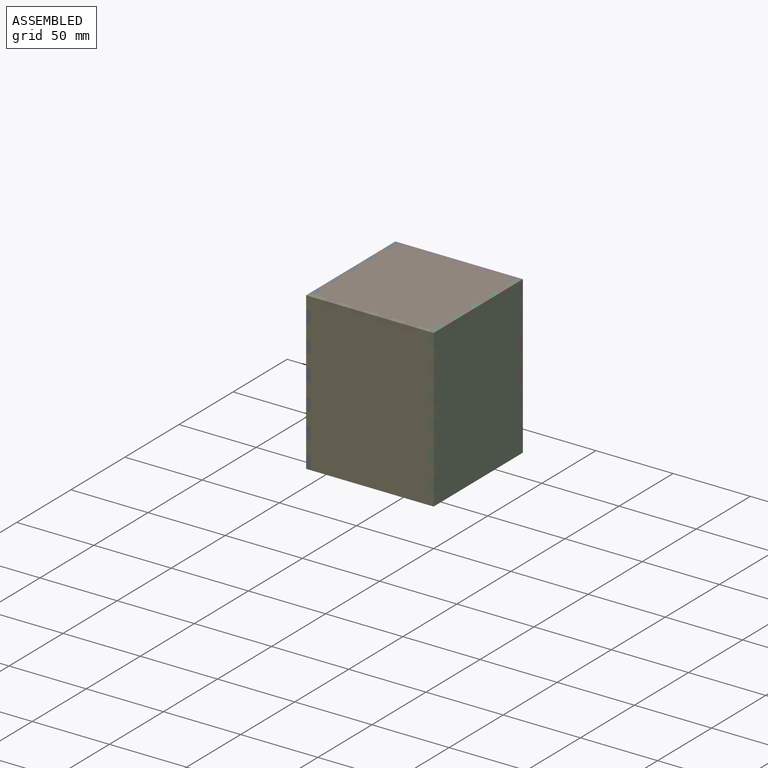
[diagram: assembled view]
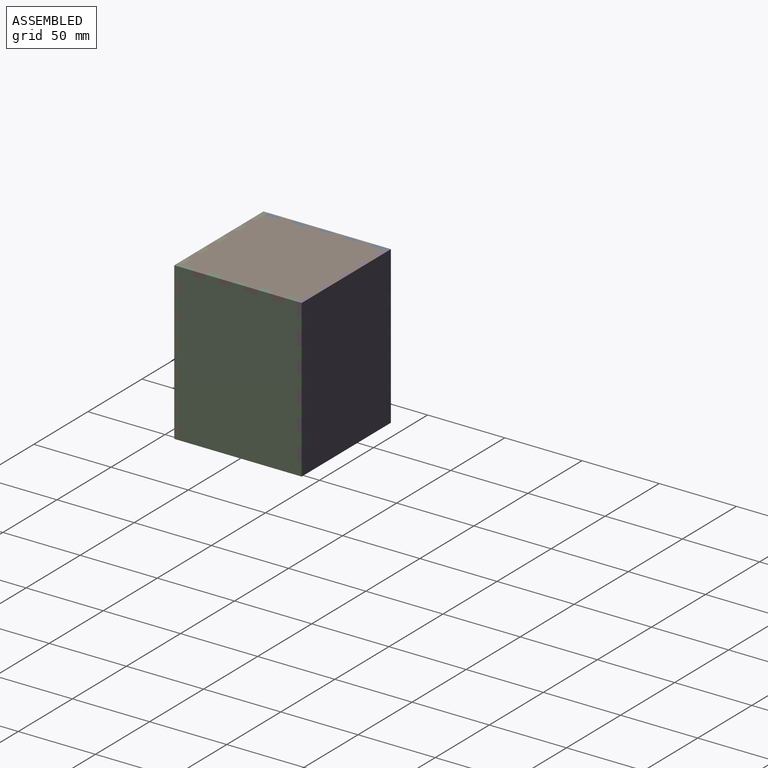
[diagram: assembled view, second angle]
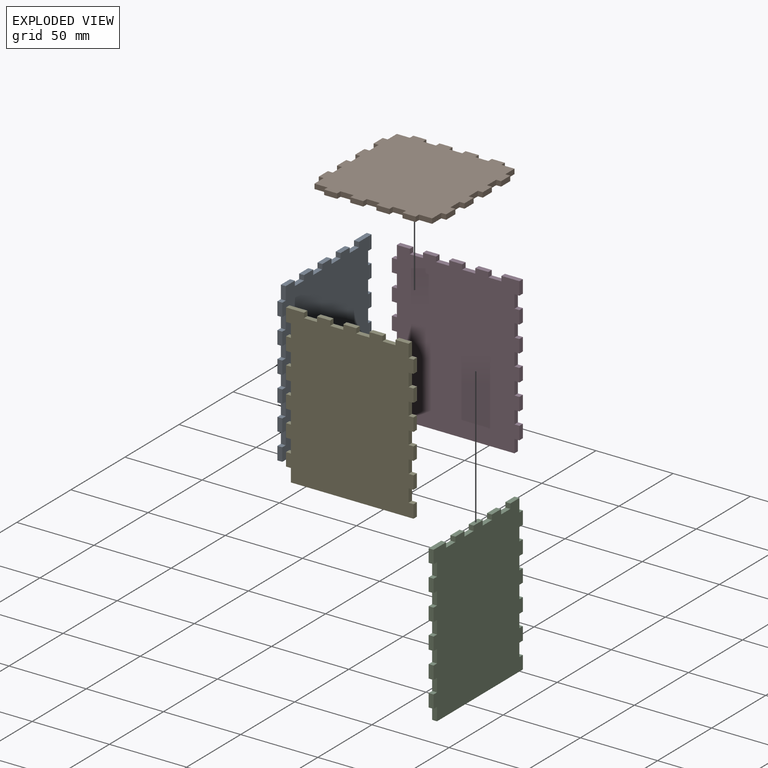
[diagram: exploded view]
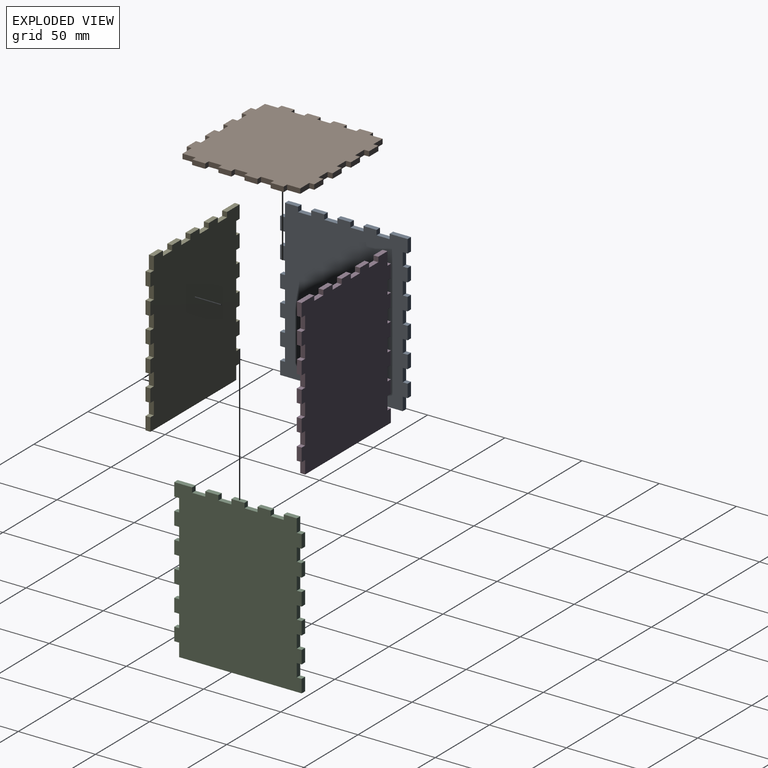
[diagram: exploded view, second angle]
ASSEMBLY  parts=5 mates=12
PART A: 66 faces, bbox 82.6x3.2x101.6 mm
  f0: plane 8.47x3.18mm, normal (0,0,-1), area 26.9mm2, adj f4,f5,f62,f63
  f1: plane 8.47x3.18mm, normal (0,0,-1), area 26.9mm2, adj f4,f5,f59,f60
  f2: plane 8.47x3.18mm, normal (0,0,-1), area 26.9mm2, adj f4,f5,f56,f57
  f3: plane 11.64x3.18mm, normal (0,0,-1), area 37mm2, adj f4,f5,f38,f54
  f4: plane 101.6x82.55mm, normal (0,-1,0), area 7957mm2, adj f0,f1,f2,f3,f6,f7,f8,f9
  f5: plane 101.6x82.55mm, normal (0,1,0), area 7957mm2, adj f0,f1,f2,f3,f6,f7,f8,f9
  f6: plane 8.47x3.18mm, normal (1,0,0), area 26.9mm2, adj f4,f5,f17,f51
  f7: plane 8.47x3.18mm, normal (1,0,0), area 26.9mm2, adj f4,f5,f48,f52
  f8: plane 8.47x3.18mm, normal (1,0,0), area 26.9mm2, adj f4,f5,f45,f49
  f9: plane 8.47x3.18mm, normal (1,0,0), area 26.9mm2, adj f4,f5,f42,f46
  f10: plane 8.47x3.18mm, normal (1,0,0), area 26.9mm2, adj f4,f5,f39,f43
  f11: plane 8.47x3.18mm, normal (1,0,0), area 26.9mm2, adj f4,f5,f37,f40
  f12: plane 8.47x3.18mm, normal (-1,0,0), area 26.9mm2, adj f4,f5,f32,f36
  f13: plane 8.47x3.18mm, normal (-1,0,0), area 26.9mm2, adj f4,f5,f29,f33
  f14: plane 8.47x3.18mm, normal (-1,0,0), area 26.9mm2, adj f4,f5,f26,f30
  f15: plane 8.47x3.18mm, normal (-1,0,0), area 26.9mm2, adj f4,f5,f23,f27
  f16: plane 8.47x3.18mm, normal (-1,0,0), area 26.9mm2, adj f4,f5,f21,f24
  f17: plane 79.38x3.18mm, normal (0,0,1), area 252mm2, adj f4,f5,f6,f20
  f18: plane 8.47x3.18mm, normal (-1,0,0), area 26.9mm2, adj f4,f5,f19,f35
  f19: plane 8.47x3.18mm, normal (0,0,-1), area 26.9mm2, adj f4,f5,f18,f65
  f20: plane 8.47x3.18mm, normal (-1,0,0), area 26.9mm2, adj f4,f5,f17,f21
  f21: plane 3.18x3.18mm, normal (0,0,-1), area 10.1mm2, adj f4,f5,f16,f20
  f22: plane 8.47x3.18mm, normal (-1,0,0), area 26.9mm2, adj f4,f5,f23,f24
  f23: plane 3.18x3.18mm, normal (0,0,-1), area 10.1mm2, adj f4,f5,f15,f22
  f24: plane 3.18x3.18mm, normal (0,0,1), area 10.1mm2, adj f4,f5,f16,f22
  f25: plane 8.47x3.18mm, normal (-1,0,0), area 26.9mm2, adj f4,f5,f26,f27
  f26: plane 3.18x3.18mm, normal (0,0,-1), area 10.1mm2, adj f4,f5,f14,f25
  f27: plane 3.18x3.18mm, normal (0,0,1), area 10.1mm2, adj f4,f5,f15,f25
  f28: plane 8.47x3.18mm, normal (-1,0,0), area 26.9mm2, adj f4,f5,f29,f30
  f29: plane 3.18x3.18mm, normal (0,0,-1), area 10.1mm2, adj f4,f5,f13,f28
  f30: plane 3.18x3.18mm, normal (0,0,1), area 10.1mm2, adj f4,f5,f14,f28
  f31: plane 8.47x3.18mm, normal (-1,0,0), area 26.9mm2, adj f4,f5,f32,f33
  f32: plane 3.18x3.18mm, normal (0,0,-1), area 10.1mm2, adj f4,f5,f12,f31
  f33: plane 3.18x3.18mm, normal (0,0,1), area 10.1mm2, adj f4,f5,f13,f31
  f34: plane 8.47x3.18mm, normal (-1,0,0), area 26.9mm2, adj f4,f5,f35,f36
  f35: plane 3.18x3.18mm, normal (0,0,-1), area 10.1mm2, adj f4,f5,f18,f34
  f36: plane 3.18x3.18mm, normal (0,0,1), area 10.1mm2, adj f4,f5,f12,f34
  f37: plane 3.18x3.18mm, normal (0,0,1), area 10.1mm2, adj f4,f5,f11,f38
  f38: plane 8.47x3.18mm, normal (1,0,0), area 26.9mm2, adj f3,f4,f5,f37
  f39: plane 3.18x3.18mm, normal (0,0,1), area 10.1mm2, adj f4,f5,f10,f41
  f40: plane 3.18x3.18mm, normal (0,0,-1), area 10.1mm2, adj f4,f5,f11,f41
  f41: plane 8.47x3.18mm, normal (1,0,0), area 26.9mm2, adj f4,f5,f39,f40
  f42: plane 3.18x3.18mm, normal (0,0,1), area 10.1mm2, adj f4,f5,f9,f44
  f43: plane 3.18x3.18mm, normal (0,0,-1), area 10.1mm2, adj f4,f5,f10,f44
  f44: plane 8.47x3.18mm, normal (1,0,0), area 26.9mm2, adj f4,f5,f42,f43
  f45: plane 3.18x3.18mm, normal (0,0,1), area 10.1mm2, adj f4,f5,f8,f47
  f46: plane 3.18x3.18mm, normal (0,0,-1), area 10.1mm2, adj f4,f5,f9,f47
  f47: plane 8.47x3.18mm, normal (1,0,0), area 26.9mm2, adj f4,f5,f45,f46
  f48: plane 3.18x3.18mm, normal (0,0,1), area 10.1mm2, adj f4,f5,f7,f50
  f49: plane 3.18x3.18mm, normal (0,0,-1), area 10.1mm2, adj f4,f5,f8,f50
  f50: plane 8.47x3.18mm, normal (1,0,0), area 26.9mm2, adj f4,f5,f48,f49
  f51: plane 3.18x3.18mm, normal (0,0,1), area 10.1mm2, adj f4,f5,f6,f53
  f52: plane 3.18x3.18mm, normal (0,0,-1), area 10.1mm2, adj f4,f5,f7,f53
  f53: plane 8.47x3.18mm, normal (1,0,0), area 26.9mm2, adj f4,f5,f51,f52
  f54: plane 3.18x3.18mm, normal (-1,0,0), area 10.1mm2, adj f3,f4,f5,f55
  f55: plane 8.47x3.18mm, normal (0,0,-1), area 26.9mm2, adj f4,f5,f54,f56
  f56: plane 3.18x3.18mm, normal (1,0,0), area 10.1mm2, adj f2,f4,f5,f55
  f57: plane 3.18x3.18mm, normal (-1,0,0), area 10.1mm2, adj f2,f4,f5,f58
  f58: plane 8.47x3.18mm, normal (0,0,-1), area 26.9mm2, adj f4,f5,f57,f59
  f59: plane 3.18x3.18mm, normal (1,0,0), area 10.1mm2, adj f1,f4,f5,f58
  f60: plane 3.18x3.18mm, normal (-1,0,0), area 10.1mm2, adj f1,f4,f5,f61
  f61: plane 8.47x3.18mm, normal (0,0,-1), area 26.9mm2, adj f4,f5,f60,f62
  f62: plane 3.18x3.18mm, normal (1,0,0), area 10.1mm2, adj f0,f4,f5,f61
  f63: plane 3.18x3.18mm, normal (-1,0,0), area 10.1mm2, adj f0,f4,f5,f64
  f64: plane 8.47x3.18mm, normal (0,0,-1), area 26.9mm2, adj f4,f5,f63,f65
  f65: plane 3.18x3.18mm, normal (1,0,0), area 10.1mm2, adj f4,f5,f19,f64
PART B: 70 faces, bbox 82.6x82.6x3.2 mm
  f0: plane 8.47x3.18mm, normal (-1,0,0), area 26.9mm2, adj f20,f21,f63,f67
  f1: plane 8.47x3.18mm, normal (1,0,0), area 26.9mm2, adj f20,f21,f60,f64
  f2: plane 8.47x3.18mm, normal (-1,0,0), area 26.9mm2, adj f20,f21,f57,f61
  f3: plane 8.47x3.18mm, normal (1,0,0), area 26.9mm2, adj f20,f21,f54,f58
  f4: plane 8.47x3.18mm, normal (-1,0,0), area 26.9mm2, adj f20,f21,f51,f55
  f5: plane 8.47x3.18mm, normal (1,0,0), area 26.9mm2, adj f20,f21,f48,f52
  f6: plane 8.47x3.18mm, normal (-1,0,0), area 26.9mm2, adj f15,f20,f21,f49
  f7: plane 8.47x3.18mm, normal (1,0,0), area 26.9mm2, adj f19,f20,f21,f46
  f8: plane 8.47x3.18mm, normal (0,1,0), area 26.9mm2, adj f20,f21,f39,f43
  f9: plane 8.47x3.18mm, normal (0,-1,0), area 26.9mm2, adj f20,f21,f36,f40
  f10: plane 8.47x3.18mm, normal (0,1,0), area 26.9mm2, adj f20,f21,f33,f37
  f11: plane 8.47x3.18mm, normal (0,-1,0), area 26.9mm2, adj f20,f21,f30,f34
  f12: plane 8.47x3.18mm, normal (0,1,0), area 26.9mm2, adj f20,f21,f27,f31
  f13: plane 8.47x3.18mm, normal (0,-1,0), area 26.9mm2, adj f20,f21,f24,f28
  f14: plane 8.47x3.18mm, normal (0,1,0), area 26.9mm2, adj f18,f20,f21,f25
  f15: plane 8.47x3.18mm, normal (0,-1,0), area 26.9mm2, adj f6,f20,f21,f22
  f16: plane 8.47x3.18mm, normal (1,0,0), area 26.9mm2, adj f17,f20,f21,f66
  f17: plane 8.47x3.18mm, normal (0,1,0), area 26.9mm2, adj f16,f20,f21,f45
  f18: plane 8.47x3.18mm, normal (-1,0,0), area 26.9mm2, adj f14,f20,f21,f69
  f19: plane 8.47x3.18mm, normal (0,-1,0), area 26.9mm2, adj f7,f20,f21,f42
  f20: plane 82.55x82.55mm, normal (0,0,1), area 6236.5mm2, adj f0,f1,f2,f3,f4,f5,f6,f7
  f21: plane 82.55x82.55mm, normal (0,0,-1), area 6236.5mm2, adj f0,f1,f2,f3,f4,f5,f6,f7
  f22: plane 3.18x3.18mm, normal (-1,0,0), area 10.1mm2, adj f15,f20,f21,f23
  f23: plane 8.47x3.18mm, normal (0,-1,0), area 26.9mm2, adj f20,f21,f22,f24
  f24: plane 3.18x3.18mm, normal (1,0,0), area 10.1mm2, adj f13,f20,f21,f23
  f25: plane 3.18x3.18mm, normal (-1,0,0), area 10.1mm2, adj f14,f20,f21,f26
  f26: plane 8.47x3.18mm, normal (0,1,0), area 26.9mm2, adj f20,f21,f25,f27
  f27: plane 3.18x3.18mm, normal (1,0,0), area 10.1mm2, adj f12,f20,f21,f26
  f28: plane 3.18x3.18mm, normal (-1,0,0), area 10.1mm2, adj f13,f20,f21,f29
  f29: plane 8.47x3.18mm, normal (0,-1,0), area 26.9mm2, adj f20,f21,f28,f30
  f30: plane 3.18x3.18mm, normal (1,0,0), area 10.1mm2, adj f11,f20,f21,f29
  f31: plane 3.18x3.18mm, normal (-1,0,0), area 10.1mm2, adj f12,f20,f21,f32
  f32: plane 8.47x3.18mm, normal (0,1,0), area 26.9mm2, adj f20,f21,f31,f33
  f33: plane 3.18x3.18mm, normal (1,0,0), area 10.1mm2, adj f10,f20,f21,f32
  f34: plane 3.18x3.18mm, normal (-1,0,0), area 10.1mm2, adj f11,f20,f21,f35
  f35: plane 8.47x3.18mm, normal (0,-1,0), area 26.9mm2, adj f20,f21,f34,f36
  f36: plane 3.18x3.18mm, normal (1,0,0), area 10.1mm2, adj f9,f20,f21,f35
  f37: plane 3.18x3.18mm, normal (-1,0,0), area 10.1mm2, adj f10,f20,f21,f38
  f38: plane 8.47x3.18mm, normal (0,1,0), area 26.9mm2, adj f20,f21,f37,f39
  f39: plane 3.18x3.18mm, normal (1,0,0), area 10.1mm2, adj f8,f20,f21,f38
  f40: plane 3.18x3.18mm, normal (-1,0,0), area 10.1mm2, adj f9,f20,f21,f41
  f41: plane 8.47x3.18mm, normal (0,-1,0), area 26.9mm2, adj f20,f21,f40,f42
  f42: plane 3.18x3.18mm, normal (1,0,0), area 10.1mm2, adj f19,f20,f21,f41
  f43: plane 3.18x3.18mm, normal (-1,0,0), area 10.1mm2, adj f8,f20,f21,f44
  f44: plane 8.47x3.18mm, normal (0,1,0), area 26.9mm2, adj f20,f21,f43,f45
  f45: plane 3.18x3.18mm, normal (1,0,0), area 10.1mm2, adj f17,f20,f21,f44
  f46: plane 3.18x3.18mm, normal (0,-1,0), area 10.1mm2, adj f7,f20,f21,f47
  f47: plane 8.47x3.18mm, normal (1,0,0), area 26.9mm2, adj f20,f21,f46,f48
  f48: plane 3.18x3.18mm, normal (0,1,0), area 10.1mm2, adj f5,f20,f21,f47
  f49: plane 3.18x3.18mm, normal (0,-1,0), area 10.1mm2, adj f6,f20,f21,f50
  f50: plane 8.47x3.18mm, normal (-1,0,0), area 26.9mm2, adj f20,f21,f49,f51
  f51: plane 3.18x3.18mm, normal (0,1,0), area 10.1mm2, adj f4,f20,f21,f50
  f52: plane 3.18x3.18mm, normal (0,-1,0), area 10.1mm2, adj f5,f20,f21,f53
  f53: plane 8.47x3.18mm, normal (1,0,0), area 26.9mm2, adj f20,f21,f52,f54
  f54: plane 3.18x3.18mm, normal (0,1,0), area 10.1mm2, adj f3,f20,f21,f53
  f55: plane 3.18x3.18mm, normal (0,-1,0), area 10.1mm2, adj f4,f20,f21,f56
  f56: plane 8.47x3.18mm, normal (-1,0,0), area 26.9mm2, adj f20,f21,f55,f57
  f57: plane 3.18x3.18mm, normal (0,1,0), area 10.1mm2, adj f2,f20,f21,f56
  f58: plane 3.18x3.18mm, normal (0,-1,0), area 10.1mm2, adj f3,f20,f21,f59
  f59: plane 8.47x3.18mm, normal (1,0,0), area 26.9mm2, adj f20,f21,f58,f60
  f60: plane 3.18x3.18mm, normal (0,1,0), area 10.1mm2, adj f1,f20,f21,f59
  f61: plane 3.18x3.18mm, normal (0,-1,0), area 10.1mm2, adj f2,f20,f21,f62
  f62: plane 8.47x3.18mm, normal (-1,0,0), area 26.9mm2, adj f20,f21,f61,f63
  f63: plane 3.18x3.18mm, normal (0,1,0), area 10.1mm2, adj f0,f20,f21,f62
  f64: plane 3.18x3.18mm, normal (0,-1,0), area 10.1mm2, adj f1,f20,f21,f65
  f65: plane 8.47x3.18mm, normal (1,0,0), area 26.9mm2, adj f20,f21,f64,f66
  f66: plane 3.18x3.18mm, normal (0,1,0), area 10.1mm2, adj f16,f20,f21,f65
  f67: plane 3.18x3.18mm, normal (0,-1,0), area 10.1mm2, adj f0,f20,f21,f68
  f68: plane 8.47x3.18mm, normal (-1,0,0), area 26.9mm2, adj f20,f21,f67,f69
  f69: plane 3.18x3.18mm, normal (0,1,0), area 10.1mm2, adj f18,f20,f21,f68
PART C: same geometry as A
PART D: same geometry as A
PART E: same geometry as A
PLACE A rot(axis=(-0.71,-0.71,0),180deg) t=(99.33,7.35,-90.34)mm
PLACE B rot(axis=(-0.71,-0.71,0),180deg) t=(137.43,7.35,-39.54)mm
PLACE C rot(axis=(0.71,-0.71,0),180deg) t=(175.53,7.35,-90.34)mm
PLACE D rot(axis=(1,0,0),180deg) t=(137.43,45.45,-90.34)mm
PLACE E rot(axis=(0,-1,0),180deg) t=(137.43,-30.75,-90.34)mm
MATE planar A.f56 <-> B.f40  axis (0,1,0) through (97.74,28.52,-41.13)mm
MATE planar B.f20 <-> A.f61  axis (0,0,-1) through (137.43,7.35,-42.71)mm
MATE planar B.f11 <-> A.f5  axis (-1,0,0) through (99.33,7.35,-41.13)mm
MATE planar D.f65 <-> B.f46  axis (1,0,0) through (107.79,47.04,-41.13)mm
MATE planar B.f1 <-> D.f5  axis (0,1,0) through (154.36,45.45,-41.13)mm
MATE planar B.f49 <-> E.f54  axis (-1,0,0) through (107.79,-32.34,-41.13)mm
MATE planar B.f21 <-> D.f0  axis (0,0,1) through (137.43,7.35,-39.54)mm
MATE planar B.f20 <-> C.f64  axis (0,0,-1) through (137.43,7.35,-42.71)mm
MATE planar B.f45 <-> C.f65  axis (0,1,0) through (177.12,36.99,-41.13)mm
MATE planar B.f0 <-> E.f5  axis (0,-1,0) through (154.36,-30.75,-41.13)mm
MATE planar E.f2 <-> B.f21  axis (0,0,1) through (120.49,-32.34,-39.54)mm
MATE planar C.f4 <-> B.f32  axis (1,0,0) through (178.7,7.35,-91)mm
